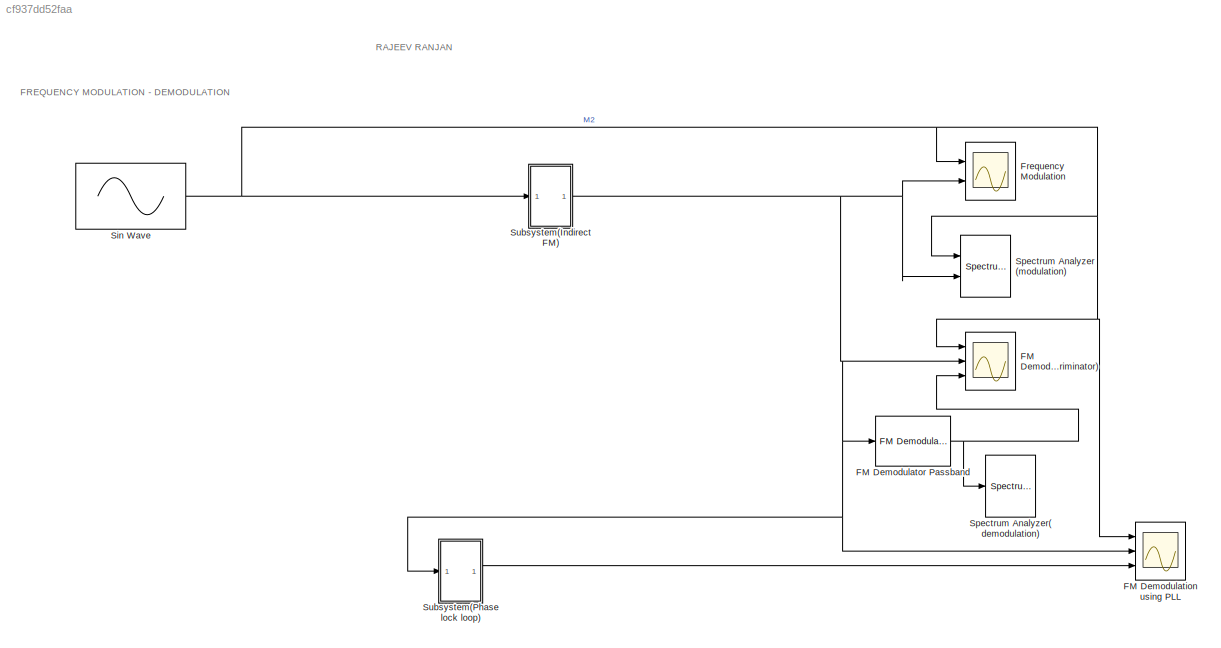
MODEL slx_cf937dd52faa
KIND model
CONFIG AbsTol = auto
CONFIG EnableMultiTasking = off
CONFIG FixedStep = auto
CONFIG MaxStep = auto
CONFIG MinStep = auto
CONFIG RelTol = 1e-3
CONFIG SampleTimeConstraint = Unconstrained
CONFIG SolverName = FixedStepDiscrete
CONFIG StartTime = 0.0
CONFIG StopTime = 10
BLOCK [Scope]                        FM Demodulation (Discriminator) 
  Floating = off
  NumInputPorts = 3
  Ports = [3]
  ScopeSpecificationString = Simulink.scopes.TimeScopeBlockCfg('CurrentConfiguration', extmgr.ConfigurationSet(extmgr.Configuration('Core','General UI',true,'FigureColor',[1 1 1]),extmgr.Configuration('Core','Source UI',true),extmgr.Configuration('Sources','WiredSimulink',true,'DataLoggingVariableName','ScopeData2'),extmgr.Configuration('Visuals','Time Domain',true,'SerializedDisplays',{struct('MinYLimReal','-1.25','MaxYLimRe...<+3168ch>
BLOCK [Scope] FM Demodulation using PLL
  Floating = off
  NumInputPorts = 3
  Ports = [3]
  ScopeSpecificationString = Simulink.scopes.TimeScopeBlockCfg('CurrentConfiguration', extmgr.ConfigurationSet(extmgr.Configuration('Core','General UI',true,'FigureColor',[1 1 1]),extmgr.Configuration('Core','Source UI',true),extmgr.Configuration('Sources','WiredSimulink',true,'DataLoggingVariableName','ScopeData1'),extmgr.Configuration('Visuals','Time Domain',true,'SerializedDisplays',{struct('MinYLimReal','-1.25','MaxYLimRe...<+3171ch>
BLOCK [Reference] FM Demodulator Passband   REF=commanapbnd3/FM
Demodulator
Passband
  Ports = [1, 1]
  SourceBlock = commanapbnd3/FM\nDemodulator\nPassband
  SourceProductBaseCode = CM
  SourceType = FM Demodulator Passband
BLOCK [Scope] Frequency Modulation 
  Floating = off
  NumInputPorts = 2
  Ports = [2]
  ScopeSpecificationString = Simulink.scopes.TimeScopeBlockCfg('CurrentConfiguration', extmgr.ConfigurationSet(extmgr.Configuration('Core','General UI',true,'FigureColor',[1 1 1]),extmgr.Configuration('Core','Source UI',true),extmgr.Configuration('Sources','WiredSimulink',true),extmgr.Configuration('Visuals','Time Domain',true,'SerializedDisplays',{struct('MinYLimReal','-1.25','MaxYLimReal','1.25','YLabelReal','','MinYLimMag'...<+2213ch>
BLOCK [Sin] Sin Wave
  Frequency = 4
  Ports = [0, 1]
  SampleTime = 1/1000
BLOCK [SpectrumAnalyzer] Spectrum Analyzer (modulation)
  NumInputPorts = 2
  Ports = [2]
  ScopeSpecificationString = spbscopes.SpectrumAnalyzerBlockCfg('CurrentConfiguration', extmgr.ConfigurationSet(extmgr.Configuration('Core','General UI',true),extmgr.Configuration('Core','Source UI',true),extmgr.Configuration('Sources','WiredSimulink',true),extmgr.Configuration('Sources','SimulinkEvent',false),extmgr.Configuration('Sources','Simulink',false),extmgr.Configuration('Sources','File',false),extmgr.Configuration('S...<+2812ch>
BLOCK [SpectrumAnalyzer] Spectrum Analyzer(demodulation) 
  Ports = [1]
  ScopeSpecificationString = spbscopes.SpectrumAnalyzerBlockCfg('CurrentConfiguration', extmgr.ConfigurationSet(extmgr.Configuration('Core','General UI',true),extmgr.Configuration('Core','Source UI',true),extmgr.Configuration('Sources','WiredSimulink',true),extmgr.Configuration('Sources','SimulinkEvent',false),extmgr.Configuration('Sources','Simulink',false),extmgr.Configuration('Sources','File',false),extmgr.Configuration('S...<+2715ch>
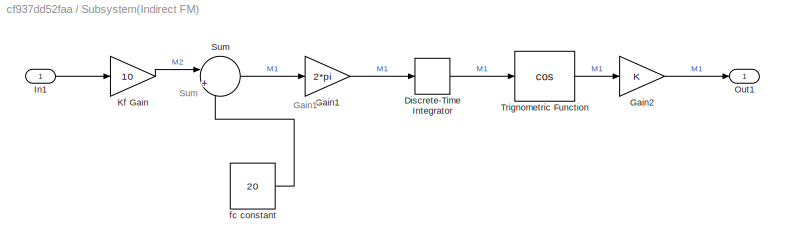
BLOCK [SubSystem] Subsystem(Indirect FM) 
  Ports = [1, 1]
  RequestExecContextInheritance = off
BLOCK [DiscreteIntegrator] Subsystem(Indirect FM) /Discrete-Time Integrator 
  ICPrevOutput = DiscIntNeverNeededParam
  ICPrevScaledInput = DiscIntNeverNeededParam
  InitialConditionSetting = Auto
  Ports = [1, 1]
  SampleTime = -1
BLOCK [Gain] Subsystem(Indirect FM) /Gain1
  Gain = 2*pi
BLOCK [Gain] Subsystem(Indirect FM) /Gain2 
BLOCK [Inport] Subsystem(Indirect FM) /In1
BLOCK [Gain] Subsystem(Indirect FM) /Kf Gain
  Gain = 10
BLOCK [Outport] Subsystem(Indirect FM) /Out1
BLOCK [Sum] Subsystem(Indirect FM) /Sum
  Inputs = |++
  Ports = [2, 1]
BLOCK [Trigonometry] Subsystem(Indirect FM) /Trignometric Function
  Operator = cos
  Ports = [1, 1]
BLOCK [Constant] Subsystem(Indirect FM) /fc constant
  Value = 20
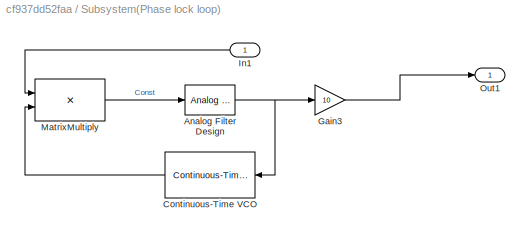
BLOCK [SubSystem] Subsystem(Phase lock loop) 
  Ports = [1, 1]
  RequestExecContextInheritance = off
BLOCK [Reference] Subsystem(Phase lock loop) /Analog Filter Design   REF=dsparch4/Analog
Filter Design
  Ports = [1, 1]
  SourceBlock = dsparch4/Analog\nFilter Design
  SourceProductBaseCode = DS
  SourceType = Analog Filter Design
BLOCK [Reference] Subsystem(Phase lock loop) /Continuous-Time VCO   REF=commsynccomp2/Continuous-Time
VCO
  Ports = [1, 1]
  SourceBlock = commsynccomp2/Continuous-Time\nVCO
  SourceProductBaseCode = CM
  SourceType = Continuous-Time VCO
BLOCK [Gain] Subsystem(Phase lock loop) /Gain3 
  Gain = 10
BLOCK [Inport] Subsystem(Phase lock loop) /In1
BLOCK [Product] Subsystem(Phase lock loop) /MatrixMultiply
  Multiplication = Matrix(*)
  Ports = [2, 1]
BLOCK [Outport] Subsystem(Phase lock loop) /Out1
ANNOTATION (root): FREQUENCY MODULATION - DEMODULATION
ANNOTATION (root): RAJEEV RANJAN
ANNOTATION Subsystem(Indirect FM) : Gain1
ANNOTATION Subsystem(Indirect FM) : Sum
NET FM Demodulator Passband :1 ->                        FM Demodulation (Discriminator) :3, Spectrum Analyzer(demodulation) :1
NET Sin Wave:1 ->                        FM Demodulation (Discriminator) :1, FM Demodulation using PLL:1, Frequency Modulation :1, Spectrum Analyzer (modulation):1, Subsystem(Indirect FM) :1
LINE Subsystem(Indirect FM) /Discrete-Time Integrator :1 -> Subsystem(Indirect FM) /Trignometric Function:1
LINE Subsystem(Indirect FM) /Gain1:1 -> Subsystem(Indirect FM) /Discrete-Time Integrator :1
LINE Subsystem(Indirect FM) /Gain2 :1 -> Subsystem(Indirect FM) /Out1:1
LINE Subsystem(Indirect FM) /In1:1 -> Subsystem(Indirect FM) /Kf Gain:1
LINE Subsystem(Indirect FM) /Kf Gain:1 -> Subsystem(Indirect FM) /Sum:1
LINE Subsystem(Indirect FM) /Sum:1 -> Subsystem(Indirect FM) /Gain1:1
LINE Subsystem(Indirect FM) /Trignometric Function:1 -> Subsystem(Indirect FM) /Gain2 :1
LINE Subsystem(Indirect FM) /fc constant:1 -> Subsystem(Indirect FM) /Sum:2
NET Subsystem(Indirect FM) :1 ->                        FM Demodulation (Discriminator) :2, FM Demodulation using PLL:2, FM Demodulator Passband :1, Frequency Modulation :2, Spectrum Analyzer (modulation):2, Subsystem(Phase lock loop) :1
NET Subsystem(Phase lock loop) /Analog Filter Design :1 -> Subsystem(Phase lock loop) /Continuous-Time VCO :1, Subsystem(Phase lock loop) /Gain3 :1
LINE Subsystem(Phase lock loop) /Continuous-Time VCO :1 -> Subsystem(Phase lock loop) /MatrixMultiply:2
LINE Subsystem(Phase lock loop) /Gain3 :1 -> Subsystem(Phase lock loop) /Out1:1
LINE Subsystem(Phase lock loop) /In1:1 -> Subsystem(Phase lock loop) /MatrixMultiply:1
LINE Subsystem(Phase lock loop) /MatrixMultiply:1 -> Subsystem(Phase lock loop) /Analog Filter Design :1
LINE Subsystem(Phase lock loop) :1 -> FM Demodulation using PLL:3
note: NET lines group one-source signal fan-out (src -> all destinations, sorted); 1:1 wires keep LINE
